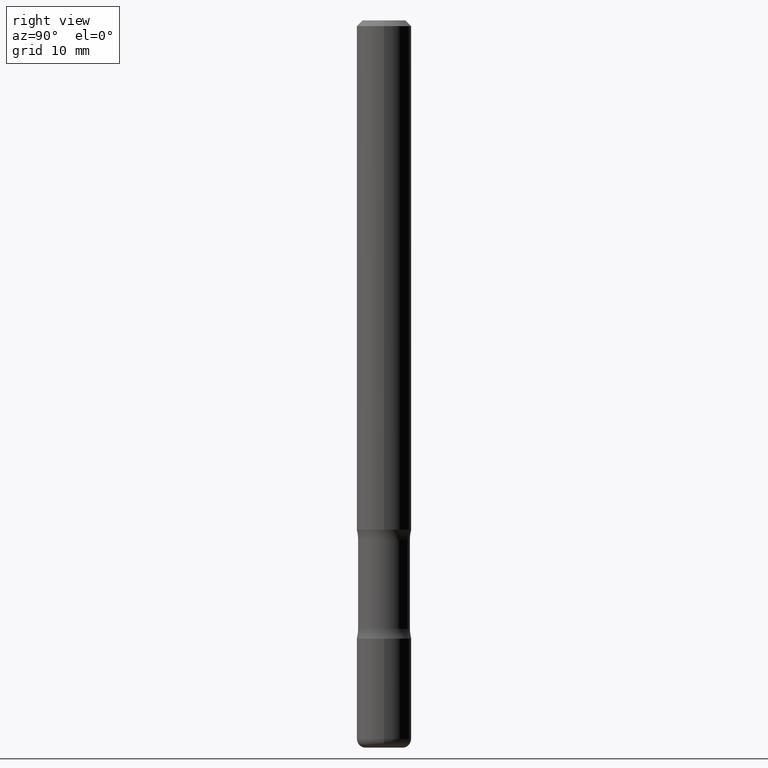
[diagram: clean part render]
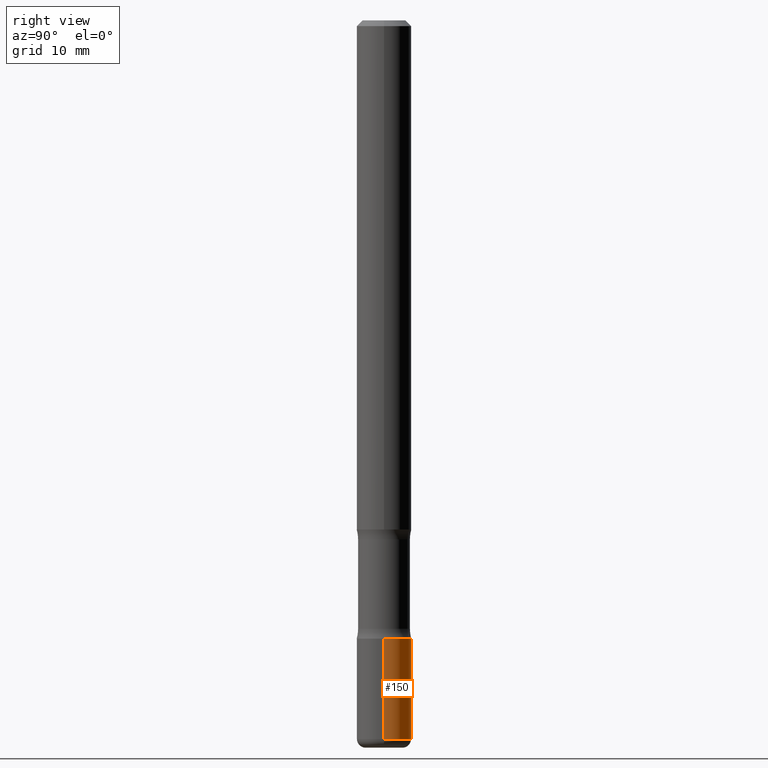
[diagram: same view with one face highlighted and labeled with its STEP entity id]
A machine part, right view. The second image highlights one B-rep face of the part: STEP entity #150.
In plain terms, the highlighted cylindrical surface (edge-blend (fillet) strip) has radius 2.3813 mm, axis along (-0, 0, 1).
Its self-contained STEP definition (entity closure, byte-faithful):
#27 = VERTEX_POINT ( 'NONE', #139 ) ;
#33 = CARTESIAN_POINT ( 'NONE',  ( 0.09374999999999994449, -9.278611657975658288E-15, -2.470000000000000639 ) ) ;
#44 = VECTOR ( 'NONE', #559, 39.37007874015748143 ) ;
#45 = DIRECTION ( 'NONE',  ( -2.445468806185136597E-29, 3.491481338843145583E-15, 1.000000000000000000 ) ) ;
#66 = CARTESIAN_POINT ( 'NONE',  ( -0.09375000000000005551, 6.661338147750943187E-16, -4.611501647113976798E-30 ) ) ;
#82 = LINE ( 'NONE', #439, #44 ) ;
#119 = ORIENTED_EDGE ( 'NONE', *, *, #294, .T. ) ;
#124 = CARTESIAN_POINT ( 'NONE',  ( -0.09374999999999994449, -7.957825092167479227E-15, -2.470000000000000639 ) ) ;
#136 = ORIENTED_EDGE ( 'NONE', *, *, #472, .F. ) ;
#139 = CARTESIAN_POINT ( 'NONE',  ( 0.09375000000000002776, -8.074050596074771916E-15, -2.125000000000000000 ) ) ;
#150 = ADVANCED_FACE ( 'NONE', ( #536 ), #315, .T. ) ;
#175 = DIRECTION ( 'NONE',  ( 1.000000000000000000, -6.982962677686266711E-15, 4.876176775795935793E-29 ) ) ;
#197 = DIRECTION ( 'NONE',  ( -2.445468806185136597E-29, 3.491481338843145583E-15, 1.000000000000000000 ) ) ;
#201 = ORIENTED_EDGE ( 'NONE', *, *, #478, .F. ) ;
#210 = AXIS2_PLACEMENT_3D ( 'NONE', #242, #197, #246 ) ;
#242 = CARTESIAN_POINT ( 'NONE',  ( 6.040307951277289098E-29, -8.623958906942573151E-15, -2.470000000000000639 ) ) ;
#246 = DIRECTION ( 'NONE',  ( 1.000000000000000000, -6.982962677686265922E-15, 0.000000000000000000 ) ) ;
#270 = VERTEX_POINT ( 'NONE', #282 ) ;
#281 = CIRCLE ( 'NONE', #327, 0.09375000000000002776 ) ;
#282 = CARTESIAN_POINT ( 'NONE',  ( -0.09375000000000002776, -7.355544561217034463E-15, -2.125000000000000000 ) ) ;
#294 = EDGE_CURVE ( 'NONE', #368, #518, #461, .T. ) ;
#307 = EDGE_LOOP ( 'NONE', ( #119, #396, #201, #136 ) ) ;
#315 = CYLINDRICAL_SURFACE ( 'NONE', #433, 0.09375000000000005551 ) ;
#327 = AXIS2_PLACEMENT_3D ( 'NONE', #442, #45, #346 ) ;
#346 = DIRECTION ( 'NONE',  ( 1.000000000000000000, -6.982962677686270655E-15, 0.000000000000000000 ) ) ;
#368 = VERTEX_POINT ( 'NONE', #33 ) ;
#391 = DIRECTION ( 'NONE',  ( -2.445468806185136877E-29, 3.491481338843145188E-15, 1.000000000000000000 ) ) ;
#396 = ORIENTED_EDGE ( 'NONE', *, *, #429, .T. ) ;
#429 = EDGE_CURVE ( 'NONE', #518, #270, #463, .T. ) ;
#433 = AXIS2_PLACEMENT_3D ( 'NONE', #537, #454, #175 ) ;
#439 = CARTESIAN_POINT ( 'NONE',  ( 0.09375000000000005551, -6.546527510330878985E-16, 4.571415727308692608E-30 ) ) ;
#442 = CARTESIAN_POINT ( 'NONE',  ( 5.196621213143415268E-29, -7.419397845041685201E-15, -2.125000000000000000 ) ) ;
#454 = DIRECTION ( 'NONE',  ( -2.445468806185136597E-29, 3.491481338843145583E-15, 1.000000000000000000 ) ) ;
#461 = CIRCLE ( 'NONE', #210, 0.09375000000000009714 ) ;
#463 = LINE ( 'NONE', #66, #469 ) ;
#469 = VECTOR ( 'NONE', #391, 39.37007874015748143 ) ;
#472 = EDGE_CURVE ( 'NONE', #368, #27, #82, .T. ) ;
#478 = EDGE_CURVE ( 'NONE', #27, #270, #281, .T. ) ;
#518 = VERTEX_POINT ( 'NONE', #124 ) ;
#536 = FACE_OUTER_BOUND ( 'NONE', #307, .T. ) ;
#537 = CARTESIAN_POINT ( 'NONE',  ( 0.000000000000000000, 0.000000000000000000, 0.000000000000000000 ) ) ;
#559 = DIRECTION ( 'NONE',  ( -2.445468806185136877E-29, 3.491481338843145188E-15, 1.000000000000000000 ) ) ;